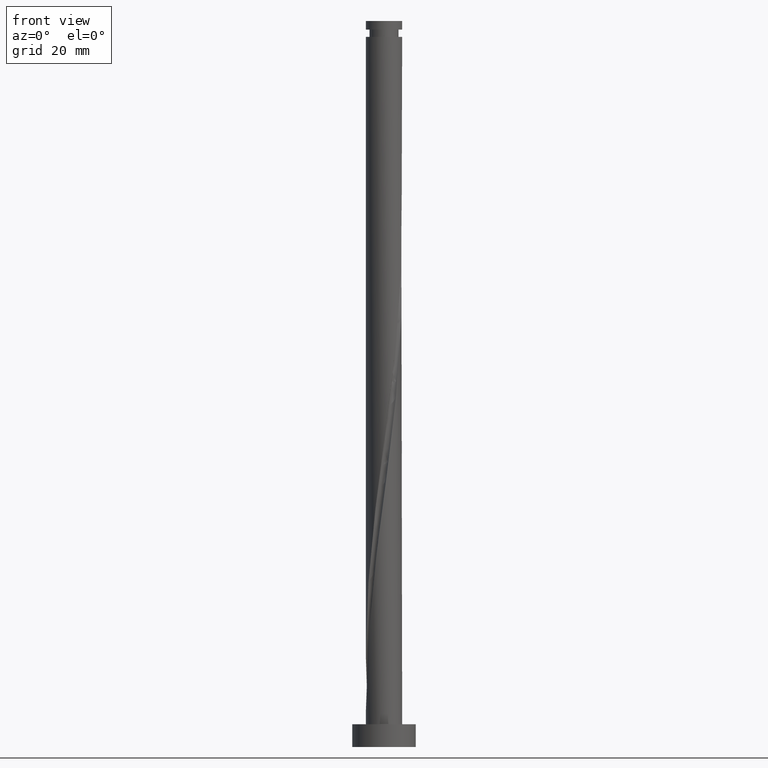
[diagram: clean part render]
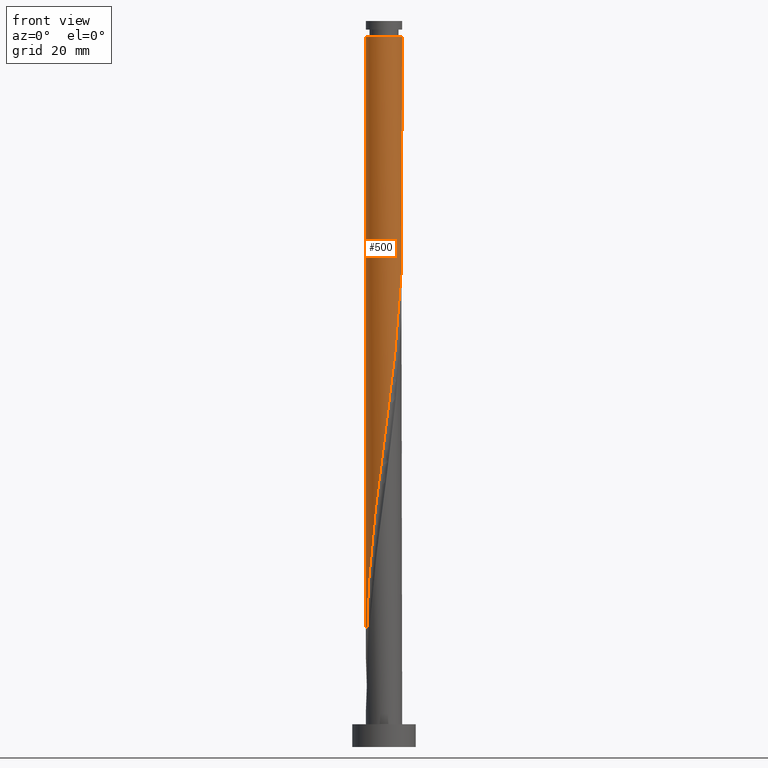
[diagram: same view with one face highlighted and labeled with its STEP entity id]
A machine part, front view. The second image highlights one B-rep face of the part: STEP entity #500.
In plain terms, the highlighted cylindrical surface (edge-blend (fillet) strip) has radius 4 mm, axis along (-0, -0, -1).
Its self-contained STEP definition (entity closure, byte-faithful):
#10 = EDGE_CURVE ( 'NONE', #1518, #2215, #1145, .T. ) ;
#61 = CARTESIAN_POINT ( 'NONE',  ( 2.996824607992352174, -2.649347517584562439, 93.08929971045471063 ) ) ;
#76 = CARTESIAN_POINT ( 'NONE',  ( 3.249779054636538600, 2.332152674257336411, 133.8571568533118921 ) ) ;
#112 = CARTESIAN_POINT ( 'NONE',  ( -1.089753338560117690, -3.860348799711773360, 59.11608542474044725 ) ) ;
#236 = CARTESIAN_POINT ( 'NONE',  ( 3.792814557677647969, 1.270652482415436602, 124.7976330437880534 ) ) ;
#237 = AXIS2_PLACEMENT_3D ( 'NONE', #2422, #2014, #2439 ) ;
#252 = CARTESIAN_POINT ( 'NONE',  ( 4.006054726275017686, -0.2034225268465848502, 113.4732282818833085 ) ) ;
#262 = DIRECTION ( 'NONE',  ( -1.000000000000000000, 0.000000000000000000, 0.000000000000000000 ) ) ;
#266 = CARTESIAN_POINT ( 'NONE',  ( 3.930991850493107176, -0.7982219401243170198, 108.9434663771214247 ) ) ;
#293 = CARTESIAN_POINT ( 'NONE',  ( 1.826858287186344132, -3.571056425328172690, 81.76489494854999407 ) ) ;
#306 = CARTESIAN_POINT ( 'NONE',  ( -3.424549736514935994, -2.088615401761303225, 36.46727590093091464 ) ) ;
#334 = CARTESIAN_POINT ( 'NONE',  ( -3.991628959278105349, -0.3959210095352894698, 22.87799018664522066 ) ) ;
#349 = CARTESIAN_POINT ( 'NONE',  ( 0.09651912840326226650, -4.010054769225892990, 68.17560923426422903 ) ) ;
#368 = EDGE_CURVE ( 'NONE', #2215, #734, #1617, .T. ) ;
#398 = AXIS2_PLACEMENT_3D ( 'NONE', #2121, #2245, #262 ) ;
#451 = CARTESIAN_POINT ( 'NONE',  ( 2.656776403252311791, 3.005227834534474951, 140.6517997104547248 ) ) ;
#463 = CARTESIAN_POINT ( 'NONE',  ( 3.939832878288661355, 0.6911706671696064008, 120.2678711390261412 ) ) ;
#477 = CARTESIAN_POINT ( 'NONE',  ( 3.195365757245600236, -2.424766560261276904, 95.35418066283568805 ) ) ;
#500 = ADVANCED_FACE ( 'NONE', ( #2060 ), #2032, .T. ) ;
#502 = CARTESIAN_POINT ( 'NONE',  ( 1.371345083024813505, 3.757580692847947379, 151.9762044723594840 ) ) ;
#514 = CARTESIAN_POINT ( 'NONE',  ( -0.7959899496852971268, -3.919999999999999929, 61.38096637712138914 ) ) ;
#518 =( BOUNDED_CURVE ( )  B_SPLINE_CURVE ( 2, ( #2365, #2133, #502, #2594, #1120, #1953, #1507, #451, #882, #1966, #76, #2341, #1768, #2564, #236, #672, #463, #920, #1308, #252, #1345, #266, #2183, #1741, #1096, #2608, #687, #477, #61, #907, #1756, #702, #1547, #293, #528, #541, #768, #739, #1629, #349, #1832, #1613, #514, #112, #1204, #1804, #2648, #1357, #1373, #2400, #784, #1160, #1388, #306, #753, #2193, #2463, #1818, #1189, #334, #1004, #1569, #1177 ),
 .UNSPECIFIED., .F., .T. ) 
 B_SPLINE_CURVE_WITH_KNOTS ( ( 3, 2, 2, 2, 2, 2, 2, 2, 2, 2, 2, 2, 2, 2, 2, 2, 2, 2, 2, 2, 2, 2, 2, 2, 2, 2, 2, 2, 2, 2, 2, 3 ),
 ( 0.2499999999999998612, 0.2559523809523808202, 0.2619047619047618070, 0.2678571428571427382, 0.2738095238095237249, 0.2797619047619046562, 0.2857142857142855874, 0.2916666666666665741, 0.2976190476190475054, 0.3035714285714284366, 0.3095238095238094234, 0.3154761904761903546, 0.3214285714285713969, 0.3273809523809523281, 0.3333333333333332593, 0.3392857142857142461, 0.3452380952380951773, 0.3511904761904761085, 0.3571428571428570953, 0.3630952380952380265, 0.3690476190476190133, 0.3749999999999999445, 0.3809523809523809312, 0.3869047619047618625, 0.3928571428571427937, 0.3988095238095238360, 0.4047619047619047672, 0.4107142857142856984, 0.4166666666666666852, 0.4226190476190476164, 0.4285714285714286031, 0.4295294382682159351 ),
 .UNSPECIFIED. ) 
 CURVE ( )  GEOMETRIC_REPRESENTATION_ITEM ( )  RATIONAL_B_SPLINE_CURVE ( ( 0.9090909090909166101, 0.9065489065283527381, 0.9090909090909164991, 0.9065489065283528491, 0.9090909090909164991, 0.9065489065283528491, 0.9090909090909164991, 0.9065489065283528491, 0.9090909090909164991, 0.9065489065283528491, 0.9090909090909164991, 0.9065489065283528491, 0.9090909090909164991, 0.9065489065283528491, 0.9090909090909164991, 0.9065489065283528491, 0.9090909090909164991, 0.9065489065283528491, 0.9090909090909164991, 0.9065489065283528491, 0.9090909090909164991, 0.9065489065283528491, 0.9090909090909164991, 0.9065489065283528491, 0.9090909090909164991, 0.9065489065283528491, 0.9090909090909164991, 0.9065489065283528491, 0.9090909090909164991, 0.9065489065283528491, 0.9090909090909164991, 0.9065489065283528491, 0.9090909090909164991, 0.9065489065283528491, 0.9090909090909164991, 0.9065489065283528491, 0.9090909090909164991, 0.9065489065283528491, 0.9090909090909164991, 0.9065489065283528491, 0.9090909090909164991, 0.9065489065283528491, 0.9090909090909164991, 0.9065489065283528491, 0.9090909090909164991, 0.9065489065283528491, 0.9090909090909164991, 0.9065489065283528491, 0.9090909090909164991, 0.9065489065283528491, 0.9090909090909164991, 0.9065489065283528491, 0.9090909090909164991, 0.9065489065283528491, 0.9090909090909164991, 0.9065489065283528491, 0.9090909090909164991, 0.9065489065283528491, 0.9090909090909164991, 0.9065489065283528491, 0.9090909090909164991, 0.9086817848894117589, 0.9084043541918569442 ) ) 
 REPRESENTATION_ITEM ( '' )  );
#528 = CARTESIAN_POINT ( 'NONE',  ( 1.550536867213569314, -3.687253099993480276, 79.50001399616901665 ) ) ;
#541 = CARTESIAN_POINT ( 'NONE',  ( 1.274215447240795385, -3.803449774658789195, 77.23513304378805344 ) ) ;
#565 = DIRECTION ( 'NONE',  ( -0.000000000000000000, -0.000000000000000000, -1.000000000000000000 ) ) ;
#578 = ORIENTED_EDGE ( 'NONE', *, *, #2502, .F. ) ;
#672 = CARTESIAN_POINT ( 'NONE',  ( 3.888036797299221359, 0.9864203248039196126, 122.5327520914071329 ) ) ;
#687 = CARTESIAN_POINT ( 'NONE',  ( 3.358217311081900025, -2.173102963862931336, 97.61906161521665126 ) ) ;
#702 = CARTESIAN_POINT ( 'NONE',  ( 2.338692131788594697, -3.258891576448835092, 86.29465685331187785 ) ) ;
#725 = EDGE_CURVE ( 'NONE', #2215, #1409, #810, .T. ) ;
#734 = VERTEX_POINT ( 'NONE', #1844 ) ;
#739 = CARTESIAN_POINT ( 'NONE',  ( 0.6931087397815305362, -3.950880341035085230, 72.70537113902614124 ) ) ;
#753 = CARTESIAN_POINT ( 'NONE',  ( -3.561071027285505952, -1.821750020894127298, 34.20239494854995854 ) ) ;
#768 = CARTESIAN_POINT ( 'NONE',  ( 0.9836620935111620723, -3.877165057846936769, 74.97025209140709023 ) ) ;
#784 = CARTESIAN_POINT ( 'NONE',  ( -2.865892388005226721, -2.790458890643919165, 43.26191875807378295 ) ) ;
#810 = LINE ( 'NONE', #1652, #1837 ) ;
#882 = CARTESIAN_POINT ( 'NONE',  ( 2.865892388005227165, 2.790458890643918721, 138.3869187580737616 ) ) ;
#907 = CARTESIAN_POINT ( 'NONE',  ( 2.798283458739103224, -2.873928474907851971, 90.82441875807377585 ) ) ;
#920 = CARTESIAN_POINT ( 'NONE',  ( 3.991628959278104460, 0.3959210095352898584, 118.0029901866452207 ) ) ;
#1004 = CARTESIAN_POINT ( 'NONE',  ( -3.998841842776561073, -0.09624924134435118572, 20.61310923426423614 ) ) ;
#1058 = ORIENTED_EDGE ( 'NONE', *, *, #725, .F. ) ;
#1096 = CARTESIAN_POINT ( 'NONE',  ( 3.644592988728936778, -1.648314880873154253, 102.1488235199785350 ) ) ;
#1120 = CARTESIAN_POINT ( 'NONE',  ( 1.916066633289090992, 3.511223242232855313, 147.4464425675975576 ) ) ;
#1145 = CIRCLE ( 'NONE', #398, 3.999999999999993339 ) ;
#1160 = CARTESIAN_POINT ( 'NONE',  ( -3.075008372758144759, -2.575689946753366044, 40.99703780569281975 ) ) ;
#1177 = CARTESIAN_POINT ( 'NONE',  ( -4.000000000000000888, -2.357209408759201477E-15, 19.88522461060430047 ) ) ;
#1189 = CARTESIAN_POINT ( 'NONE',  ( -3.939832878288662243, -0.6911706671696051796, 25.14287113902615900 ) ) ;
#1198 = DIRECTION ( 'NONE',  ( -0.000000000000000000, -0.000000000000000000, -1.000000000000000000 ) ) ;
#1204 = CARTESIAN_POINT ( 'NONE',  ( -1.371345083024813283, -3.757580692847947823, 56.85120447235948404 ) ) ;
#1286 = CARTESIAN_POINT ( 'NONE',  ( 4.000000000000000000, 4.898587196589412829E-16, 19.06550016000518966 ) ) ;
#1300 = ORIENTED_EDGE ( 'NONE', *, *, #368, .T. ) ;
#1308 = CARTESIAN_POINT ( 'NONE',  ( 3.998841842776561073, 0.09624924134435072776, 115.7381092342642432 ) ) ;
#1345 = CARTESIAN_POINT ( 'NONE',  ( 3.968523288384061765, -0.5008222334854507407, 111.2083473295023168 ) ) ;
#1357 = CARTESIAN_POINT ( 'NONE',  ( -2.179196439088673554, -3.367633898481588339, 50.05656161521662995 ) ) ;
#1373 = CARTESIAN_POINT ( 'NONE',  ( -2.417986421170494005, -3.186430866508028981, 47.79168066283568095 ) ) ;
#1388 = CARTESIAN_POINT ( 'NONE',  ( -3.249779054636539488, -2.332152674257334635, 38.73215685331185654 ) ) ;
#1409 = VERTEX_POINT ( 'NONE', #1286 ) ;
#1442 = EDGE_CURVE ( 'NONE', #734, #1672, #1471, .T. ) ;
#1471 = LINE ( 'NONE', #2139, #2392 ) ;
#1507 = CARTESIAN_POINT ( 'NONE',  ( 2.417986421170494005, 3.186430866508028981, 142.9166806628356596 ) ) ;
#1518 = VERTEX_POINT ( 'NONE', #2318 ) ;
#1528 = ORIENTED_EDGE ( 'NONE', *, *, #10, .T. ) ;
#1547 = CARTESIAN_POINT ( 'NONE',  ( 2.082775209487468526, -3.414974000888503891, 84.02977590093090043 ) ) ;
#1569 = CARTESIAN_POINT ( 'NONE',  ( -4.000000000000000000, -0.04813158866556285775, 20.24944216050762336 ) ) ;
#1613 = CARTESIAN_POINT ( 'NONE',  ( -0.5022265608104750090, -3.979651200288228718, 63.64584732950234525 ) ) ;
#1617 = CIRCLE ( 'NONE', #237, 3.999999999999993339 ) ;
#1629 = CARTESIAN_POINT ( 'NONE',  ( 0.3948139340923973450, -3.980467555130488222, 70.44049018664517803 ) ) ;
#1652 = CARTESIAN_POINT ( 'NONE',  ( 4.000000000000000000, 4.898587196589412829E-16, 160.0000000000000000 ) ) ;
#1672 = VERTEX_POINT ( 'NONE', #2344 ) ;
#1741 = CARTESIAN_POINT ( 'NONE',  ( 3.768117112539675961, -1.375190394281718520, 104.4137044723594983 ) ) ;
#1756 = CARTESIAN_POINT ( 'NONE',  ( 2.568487795263847850, -3.066410025678343310, 88.55953780569278422 ) ) ;
#1768 = CARTESIAN_POINT ( 'NONE',  ( 3.561071027285505952, 1.821750020894127076, 129.3273949485499088 ) ) ;
#1804 = CARTESIAN_POINT ( 'NONE',  ( -1.652936827489511318, -3.654812585984124063, 54.58632351997854215 ) ) ;
#1818 = CARTESIAN_POINT ( 'NONE',  ( -3.888036797299220471, -0.9864203248039202787, 27.40775209140711866 ) ) ;
#1832 = CARTESIAN_POINT ( 'NONE',  ( -0.2028537162036062880, -3.994852984757057968, 65.91072828188329424 ) ) ;
#1837 = VECTOR ( 'NONE', #565, 1000.000000000000000 ) ;
#1844 = CARTESIAN_POINT ( 'NONE',  ( -3.999999999999993339, 0.000000000000000000, 156.5059663771213820 ) ) ;
#1896 = CARTESIAN_POINT ( 'NONE',  ( 3.999999999999993339, 4.898587196589407898E-16, 156.5059663771213820 ) ) ;
#1926 = EDGE_LOOP ( 'NONE', ( #1528, #2188, #1058, #1300, #2229, #578 ) ) ;
#1953 = CARTESIAN_POINT ( 'NONE',  ( 2.179196439088673998, 3.367633898481588339, 145.1815616152166797 ) ) ;
#1966 = CARTESIAN_POINT ( 'NONE',  ( 3.075008372758144759, 2.575689946753366044, 136.1220378056928269 ) ) ;
#2004 = AXIS2_PLACEMENT_3D ( 'NONE', #2304, #1198, #2671 ) ;
#2014 = DIRECTION ( 'NONE',  ( -0.000000000000000000, -0.000000000000000000, -1.000000000000000000 ) ) ;
#2032 = CYLINDRICAL_SURFACE ( 'NONE', #2004, 4.000000000000000000 ) ;
#2060 = FACE_OUTER_BOUND ( 'NONE', #1926, .T. ) ;
#2121 = CARTESIAN_POINT ( 'NONE',  ( 0.000000000000000000, 0.000000000000000000, 156.5059663771213820 ) ) ;
#2133 = CARTESIAN_POINT ( 'NONE',  ( 1.089753338560109697, 3.860348799711775580, 154.2410854247405325 ) ) ;
#2139 = CARTESIAN_POINT ( 'NONE',  ( -4.000000000000000000, 0.000000000000000000, 160.0000000000000000 ) ) ;
#2183 = CARTESIAN_POINT ( 'NONE',  ( 3.849554481516390680, -1.086706167203016049, 106.6785854247404330 ) ) ;
#2188 = ORIENTED_EDGE ( 'NONE', *, *, #725, .T. ) ;
#2193 = CARTESIAN_POINT ( 'NONE',  ( -3.697592318056076355, -1.554884640026952480, 31.93751399616901665 ) ) ;
#2215 = VERTEX_POINT ( 'NONE', #1896 ) ;
#2229 = ORIENTED_EDGE ( 'NONE', *, *, #1442, .T. ) ;
#2245 = DIRECTION ( 'NONE',  ( -0.000000000000000000, -0.000000000000000000, -1.000000000000000000 ) ) ;
#2304 = CARTESIAN_POINT ( 'NONE',  ( 0.000000000000000000, 0.000000000000000000, 160.0000000000000000 ) ) ;
#2305 = DIRECTION ( 'NONE',  ( -0.000000000000000000, -0.000000000000000000, -1.000000000000000000 ) ) ;
#2318 = CARTESIAN_POINT ( 'NONE',  ( 0.7959899496852969047, 3.919999999999992824, 156.5059663771213820 ) ) ;
#2341 = CARTESIAN_POINT ( 'NONE',  ( 3.424549736514936882, 2.088615401761303225, 131.5922759009309289 ) ) ;
#2344 = CARTESIAN_POINT ( 'NONE',  ( -4.000000000000000888, -2.357209408759201477E-15, 19.88522461060430047 ) ) ;
#2365 = CARTESIAN_POINT ( 'NONE',  ( 0.7959899496852969047, 3.919999999999992824, 156.5059663771213820 ) ) ;
#2392 = VECTOR ( 'NONE', #2305, 1000.000000000000000 ) ;
#2400 = CARTESIAN_POINT ( 'NONE',  ( -2.656776403252312235, -3.005227834534474063, 45.52679971045473906 ) ) ;
#2422 = CARTESIAN_POINT ( 'NONE',  ( 0.000000000000000000, 0.000000000000000000, 156.5059663771213820 ) ) ;
#2439 = DIRECTION ( 'NONE',  ( -1.000000000000000000, 0.000000000000000000, 0.000000000000000000 ) ) ;
#2463 = CARTESIAN_POINT ( 'NONE',  ( -3.792814557677647969, -1.270652482415437268, 29.67263304378805699 ) ) ;
#2502 = EDGE_CURVE ( 'NONE', #1518, #1672, #518, .T. ) ;
#2564 = CARTESIAN_POINT ( 'NONE',  ( 3.697592318056076355, 1.554884640026953813, 127.0625139961690024 ) ) ;
#2594 = CARTESIAN_POINT ( 'NONE',  ( 1.652936827489511762, 3.654812585984124063, 149.7113235199785493 ) ) ;
#2608 = CARTESIAN_POINT ( 'NONE',  ( 3.521068864918200259, -1.921439367464587544, 99.88394256759757184 ) ) ;
#2648 = CARTESIAN_POINT ( 'NONE',  ( -1.916066633289092325, -3.511223242232855313, 52.32144256759757184 ) ) ;
#2671 = DIRECTION ( 'NONE',  ( -1.000000000000000000, 0.000000000000000000, 0.000000000000000000 ) ) ;